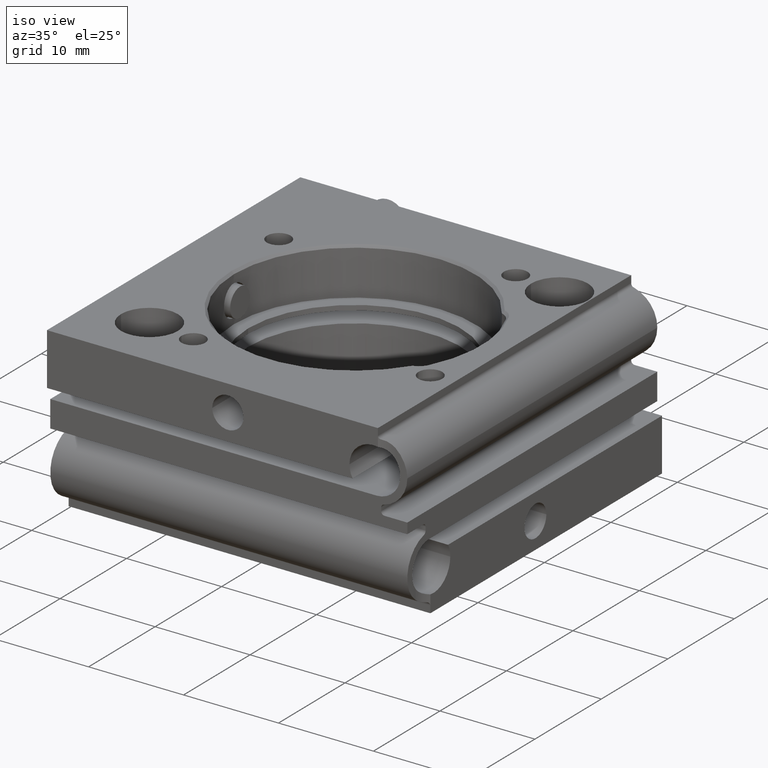
[diagram: clean part render]
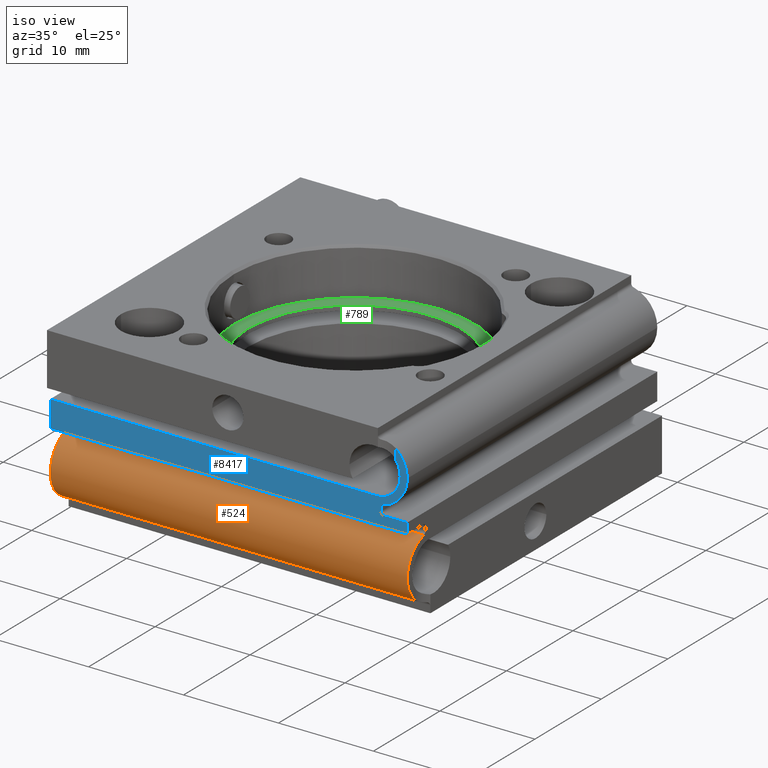
[diagram: same view with three faces highlighted in distinct colors, each labeled with its STEP entity id]
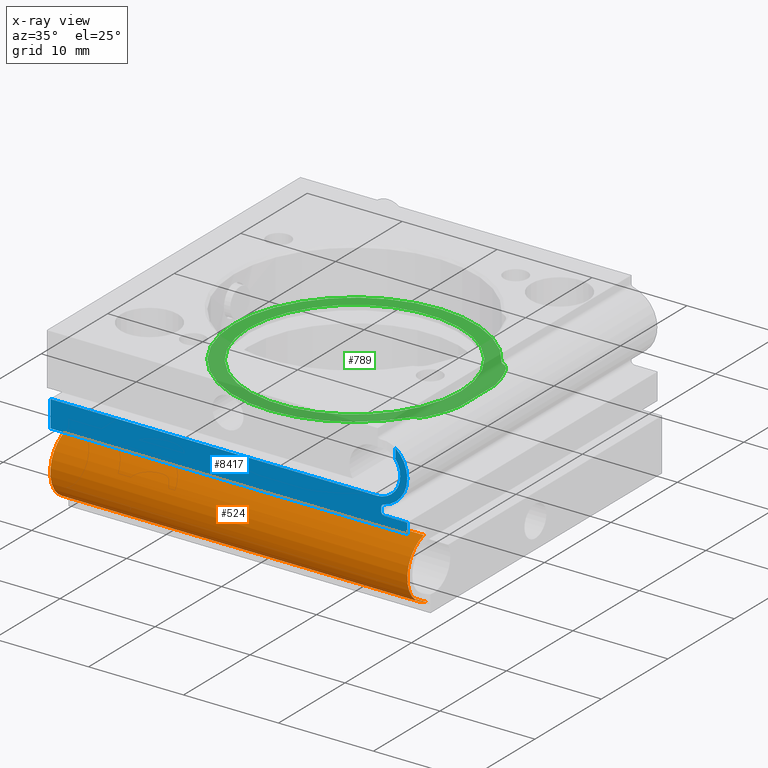
[diagram: x-ray of the same camera — body ghosted, the three highlighted faces saturated]
A machine part, iso view with three faces highlighted in distinct colors.
The next image is the same camera in x-ray (body ghosted, the three faces saturated) — at least one of them is partly hidden behind the body in this view.
Their STEP definitions:

[orange] entity #524 — the highlighted cylindrical surface (partial cylindrical patch) has radius 3.25 mm, axis along (1, 0, -0).
#366 = ORIENTED_EDGE ( 'NONE', *, *, #4322, .F. ) ;
#524 = ADVANCED_FACE ( 'NONE', ( #7244 ), #4232, .T. ) ;
#576 = CARTESIAN_POINT ( 'NONE',  ( -19.05000000000015703, -16.06736111111124643, -1.591890292413144392 ) ) ;
#1134 = ORIENTED_EDGE ( 'NONE', *, *, #10016, .T. ) ;
#1227 = EDGE_CURVE ( 'NONE', #9018, #3850, #4810, .T. ) ;
#1525 = ORIENTED_EDGE ( 'NONE', *, *, #6764, .T. ) ;
#2017 = DIRECTION ( 'NONE',  ( -1.000000000000000000, -4.496403249731883989E-15, -1.000802005371234018E-16 ) ) ;
#2047 = CARTESIAN_POINT ( 'NONE',  ( 18.57141869312910032, -16.90716026191357457, -7.584533274308154382 ) ) ;
#2576 = DIRECTION ( 'NONE',  ( 1.000000000000000000, 4.496403249731883989E-15, -2.403560570595272096E-31 ) ) ;
#2895 = B_SPLINE_CURVE_WITH_KNOTS ( 'NONE', 3,
 ( #5452, #9587, #6160, #2047, #10270, #6371 ),
 .UNSPECIFIED., .F., .F.,
 ( 4, 2, 4 ),
 ( 0.0000000000000000000, 0.0007118922461806793511, 0.001423784492361358702 ),
 .UNSPECIFIED. ) ;
#3115 = CARTESIAN_POINT ( 'NONE',  ( 18.54999999999984439, -16.06736111111096221, -1.591890292413144836 ) ) ;
#3162 = AXIS2_PLACEMENT_3D ( 'NONE', #9985, #2017, #5301 ) ;
#3553 = VECTOR ( 'NONE', #3909, 1000.000000000000000 ) ;
#3850 = VERTEX_POINT ( 'NONE', #4813 ) ;
#3909 = DIRECTION ( 'NONE',  ( -1.000000000000000000, -4.496403249731883989E-15, 2.403560570595272096E-31 ) ) ;
#3982 = VERTEX_POINT ( 'NONE', #5008 ) ;
#4232 = CYLINDRICAL_SURFACE ( 'NONE', #7175, 3.249999999999999556 ) ;
#4322 = EDGE_CURVE ( 'NONE', #9018, #8710, #5099, .T. ) ;
#4760 = DIRECTION ( 'NONE',  ( 1.000000000000000000, 4.496403249731883989E-15, -2.403560570595272096E-31 ) ) ;
#4810 = LINE ( 'NONE', #8838, #8151 ) ;
#4813 = CARTESIAN_POINT ( 'NONE',  ( 18.87500543228278360, -16.06736111111096221, -7.908109707586850057 ) ) ;
#5008 = CARTESIAN_POINT ( 'NONE',  ( 18.54999999999985860, -17.29999999999984794, -7.311737691489901714 ) ) ;
#5085 = CARTESIAN_POINT ( 'NONE',  ( -19.05000000000015703, -15.30000000000006288, -4.749999999999998224 ) ) ;
#5099 = CIRCLE ( 'NONE', #5272, 3.249999999999999556 ) ;
#5272 = AXIS2_PLACEMENT_3D ( 'NONE', #5085, #7524, #9119 ) ;
#5301 = DIRECTION ( 'NONE',  ( 0.0000000000000000000, 0.0000000000000000000, -1.000000000000000000 ) ) ;
#5452 = CARTESIAN_POINT ( 'NONE',  ( 18.87500543228278360, -16.06736111111096221, -7.908109707586850057 ) ) ;
#5477 = EDGE_LOOP ( 'NONE', ( #1134, #10669, #1525, #366, #9369 ) ) ;
#6160 = CARTESIAN_POINT ( 'NONE',  ( 18.67706603401712684, -16.48337723049468551, -7.785977819579886550 ) ) ;
#6228 = EDGE_CURVE ( 'NONE', #3982, #10124, #10359, .T. ) ;
#6371 = CARTESIAN_POINT ( 'NONE',  ( 18.54999999999985860, -17.29999999999984794, -7.311737691489901714 ) ) ;
#6764 = EDGE_CURVE ( 'NONE', #10124, #8710, #7990, .T. ) ;
#6812 = CARTESIAN_POINT ( 'NONE',  ( -19.05000000000015703, -15.30000000000006288, -4.749999999999998224 ) ) ;
#6843 = CARTESIAN_POINT ( 'NONE',  ( -19.05000000000015703, -16.06736111111124643, -1.591890292413144836 ) ) ;
#7175 = AXIS2_PLACEMENT_3D ( 'NONE', #6812, #2576, #9216 ) ;
#7244 = FACE_OUTER_BOUND ( 'NONE', #5477, .T. ) ;
#7524 = DIRECTION ( 'NONE',  ( -1.000000000000000000, -4.496403249731883989E-15, 2.403560570595272096E-31 ) ) ;
#7990 = LINE ( 'NONE', #576, #3553 ) ;
#8151 = VECTOR ( 'NONE', #4760, 1000.000000000000000 ) ;
#8710 = VERTEX_POINT ( 'NONE', #6843 ) ;
#8838 = CARTESIAN_POINT ( 'NONE',  ( -19.05000000000015703, -16.06736111111124643, -7.908109707586851833 ) ) ;
#9018 = VERTEX_POINT ( 'NONE', #10556 ) ;
#9119 = DIRECTION ( 'NONE',  ( 4.270088556250602685E-15, 1.000000000000000000, 0.0000000000000000000 ) ) ;
#9216 = DIRECTION ( 'NONE',  ( 4.270088556250602685E-15, 1.000000000000000000, 0.0000000000000000000 ) ) ;
#9369 = ORIENTED_EDGE ( 'NONE', *, *, #1227, .T. ) ;
#9587 = CARTESIAN_POINT ( 'NONE',  ( 18.75870090299682502, -16.27258075952387273, -7.858245202547762709 ) ) ;
#9985 = CARTESIAN_POINT ( 'NONE',  ( 18.54999999999984439, -15.29999999999992433, -4.749999999999998224 ) ) ;
#10016 = EDGE_CURVE ( 'NONE', #3850, #3982, #2895, .T. ) ;
#10124 = VERTEX_POINT ( 'NONE', #3115 ) ;
#10270 = CARTESIAN_POINT ( 'NONE',  ( 18.54999999999985860, -17.11023702222711407, -7.459889454570972411 ) ) ;
#10359 = CIRCLE ( 'NONE', #3162, 3.250000000000000444 ) ;
#10556 = CARTESIAN_POINT ( 'NONE',  ( -19.05000000000015703, -16.06736111111124643, -7.908109707586851833 ) ) ;
#10669 = ORIENTED_EDGE ( 'NONE', *, *, #6228, .T. ) ;

[blue] entity #8417 — the highlighted planar face has unit normal (0, 1, 0).
#2 = CIRCLE ( 'NONE', #7620, 2.500000000000000444 ) ;
#71 = VECTOR ( 'NONE', #5574, 1000.000000000000000 ) ;
#357 = EDGE_CURVE ( 'NONE', #8084, #2644, #3029, .T. ) ;
#425 = VERTEX_POINT ( 'NONE', #1517 ) ;
#533 = CARTESIAN_POINT ( 'NONE',  ( 15.29999999999992966, -18.54999999999985505, 2.249999999999999556 ) ) ;
#588 = CARTESIAN_POINT ( 'NONE',  ( 15.79999999999985505, -18.54999999999985505, 1.538691855333712777 ) ) ;
#659 = EDGE_CURVE ( 'NONE', #9827, #9586, #7364, .T. ) ;
#731 = AXIS2_PLACEMENT_3D ( 'NONE', #4843, #3941, #5703 ) ;
#741 = AXIS2_PLACEMENT_3D ( 'NONE', #4755, #2451, #7231 ) ;
#800 = DIRECTION ( 'NONE',  ( 0.0000000000000000000, 0.0000000000000000000, -1.000000000000000000 ) ) ;
#936 = EDGE_CURVE ( 'NONE', #9715, #7963, #3154, .T. ) ;
#974 = LINE ( 'NONE', #7457, #6486 ) ;
#984 = ORIENTED_EDGE ( 'NONE', *, *, #3957, .F. ) ;
#1020 = LINE ( 'NONE', #8513, #9502 ) ;
#1026 = CARTESIAN_POINT ( 'NONE',  ( 17.29999999999986215, -18.54999999999985150, 9.000000000000001776 ) ) ;
#1367 = CARTESIAN_POINT ( 'NONE',  ( 17.29999999999986215, -18.54999999999985150, 6.249999999999998224 ) ) ;
#1470 = LINE ( 'NONE', #5731, #6615 ) ;
#1517 = CARTESIAN_POINT ( 'NONE',  ( 17.79999999999992966, -18.54999999999986571, 4.749999999999999112 ) ) ;
#1527 = ORIENTED_EDGE ( 'NONE', *, *, #3452, .T. ) ;
#1569 = DIRECTION ( 'NONE',  ( -1.000802005371246714E-16, -7.792911615157452995E-17, 1.000000000000000000 ) ) ;
#1601 = ORIENTED_EDGE ( 'NONE', *, *, #357, .F. ) ;
#1639 = CARTESIAN_POINT ( 'NONE',  ( 15.29999999999992966, -18.54999999999985505, 4.750000000000000000 ) ) ;
#1832 = LINE ( 'NONE', #1026, #8898 ) ;
#1872 = VERTEX_POINT ( 'NONE', #2529 ) ;
#1925 = DIRECTION ( 'NONE',  ( -4.718447854656915297E-15, -1.000000000000000000, -7.792911615157350690E-17 ) ) ;
#2167 = VECTOR ( 'NONE', #8705, 1000.000000000000000 ) ;
#2349 = CARTESIAN_POINT ( 'NONE',  ( 15.79999999999985505, -18.54999999999985505, 0.8999999999999990230 ) ) ;
#2451 = DIRECTION ( 'NONE',  ( 4.718447854656915297E-15, 1.000000000000000000, 7.792911615157350690E-17 ) ) ;
#2529 = CARTESIAN_POINT ( 'NONE',  ( 18.54999999999984794, -18.54999999999985505, 0.5499999999999993783 ) ) ;
#2632 = CIRCLE ( 'NONE', #741, 3.249999999999999556 ) ;
#2644 = VERTEX_POINT ( 'NONE', #2349 ) ;
#2923 = EDGE_LOOP ( 'NONE', ( #4465, #1527, #6014, #6450, #1601, #984, #8924, #5526, #3432, #10297, #7961, #10512, #9637 ) ) ;
#2937 = EDGE_CURVE ( 'NONE', #7963, #425, #2, .T. ) ;
#3029 = LINE ( 'NONE', #588, #71 ) ;
#3154 = LINE ( 'NONE', #8113, #2167 ) ;
#3334 = AXIS2_PLACEMENT_3D ( 'NONE', #9943, #6798, #3821 ) ;
#3432 = ORIENTED_EDGE ( 'NONE', *, *, #4789, .T. ) ;
#3452 = EDGE_CURVE ( 'NONE', #10062, #1872, #1470, .T. ) ;
#3506 = PLANE ( 'NONE',  #3334 ) ;
#3609 = EDGE_CURVE ( 'NONE', #5985, #1872, #974, .T. ) ;
#3821 = DIRECTION ( 'NONE',  ( 6.388754070904234775E-31, 7.792911615157351922E-17, -1.000000000000000000 ) ) ;
#3919 = AXIS2_PLACEMENT_3D ( 'NONE', #6157, #5505, #6314 ) ;
#3941 = DIRECTION ( 'NONE',  ( -4.718447854656915297E-15, -1.000000000000000000, -7.792911615157350690E-17 ) ) ;
#3957 = EDGE_CURVE ( 'NONE', #9825, #8084, #10413, .T. ) ;
#4094 = EDGE_CURVE ( 'NONE', #2644, #5985, #7360, .T. ) ;
#4116 = DIRECTION ( 'NONE',  ( -4.718447854656915297E-15, -1.000000000000000000, -7.792911615157350690E-17 ) ) ;
#4465 = ORIENTED_EDGE ( 'NONE', *, *, #8058, .T. ) ;
#4484 = VERTEX_POINT ( 'NONE', #1367 ) ;
#4499 = LINE ( 'NONE', #6055, #8556 ) ;
#4554 = CARTESIAN_POINT ( 'NONE',  ( 18.54999999999984794, -18.54999999999985505, -0.5500000000000009326 ) ) ;
#4607 = AXIS2_PLACEMENT_3D ( 'NONE', #10412, #1925, #10350 ) ;
#4655 = VERTEX_POINT ( 'NONE', #9699 ) ;
#4755 = CARTESIAN_POINT ( 'NONE',  ( 15.29999999999992788, -18.54999999999985505, 4.750000000000000000 ) ) ;
#4789 = EDGE_CURVE ( 'NONE', #9827, #4484, #1832, .T. ) ;
#4826 = EDGE_CURVE ( 'NONE', #9715, #4655, #4499, .T. ) ;
#4843 = CARTESIAN_POINT ( 'NONE',  ( 15.29999999999992966, -18.54999999999985505, 4.750000000000000000 ) ) ;
#5061 = CARTESIAN_POINT ( 'NONE',  ( 16.14999999999985647, -18.54999999999985505, 1.251786170057640035 ) ) ;
#5159 = DIRECTION ( 'NONE',  ( 1.000000000000000000, 4.496403249731883989E-15, -2.403560570595272096E-31 ) ) ;
#5335 = CARTESIAN_POINT ( 'NONE',  ( 16.14999999999985647, -18.54999999999985505, 0.5499999999999990452 ) ) ;
#5505 = DIRECTION ( 'NONE',  ( 4.718447854656915297E-15, 1.000000000000000000, 7.792911615157350690E-17 ) ) ;
#5518 = CARTESIAN_POINT ( 'NONE',  ( -19.05000000000015703, -18.55000000000013571, 2.249999999999996003 ) ) ;
#5526 = ORIENTED_EDGE ( 'NONE', *, *, #659, .F. ) ;
#5574 = DIRECTION ( 'NONE',  ( 6.297619439223282751E-31, 7.792911615157351922E-17, -1.000000000000000000 ) ) ;
#5691 = DIRECTION ( 'NONE',  ( 0.0000000000000000000, 0.0000000000000000000, -1.000000000000000000 ) ) ;
#5703 = DIRECTION ( 'NONE',  ( 6.938893903907227392E-16, 0.0000000000000000000, -1.000000000000000000 ) ) ;
#5731 = CARTESIAN_POINT ( 'NONE',  ( 18.54999999999984439, -18.54999999999985505, 41.60328069864851130 ) ) ;
#5801 = AXIS2_PLACEMENT_3D ( 'NONE', #5061, #4116, #800 ) ;
#5985 = VERTEX_POINT ( 'NONE', #5335 ) ;
#6014 = ORIENTED_EDGE ( 'NONE', *, *, #3609, .F. ) ;
#6055 = CARTESIAN_POINT ( 'NONE',  ( -19.05000000000015703, -18.55000000000013927, 41.60328069864851130 ) ) ;
#6115 = EDGE_CURVE ( 'NONE', #9586, #9825, #2632, .T. ) ;
#6157 = CARTESIAN_POINT ( 'NONE',  ( 15.29999999999992788, -18.54999999999985505, 4.750000000000000000 ) ) ;
#6314 = DIRECTION ( 'NONE',  ( 0.0000000000000000000, 0.0000000000000000000, -1.000000000000000000 ) ) ;
#6450 = ORIENTED_EDGE ( 'NONE', *, *, #4094, .F. ) ;
#6486 = VECTOR ( 'NONE', #9914, 1000.000000000000000 ) ;
#6615 = VECTOR ( 'NONE', #1569, 1000.000000000000000 ) ;
#6696 = FACE_OUTER_BOUND ( 'NONE', #2923, .T. ) ;
#6798 = DIRECTION ( 'NONE',  ( 4.718447854656915297E-15, 1.000000000000000000, 7.792911615157351922E-17 ) ) ;
#6978 = DIRECTION ( 'NONE',  ( 6.388754070904234775E-31, 7.792911615157351922E-17, -1.000000000000000000 ) ) ;
#7231 = DIRECTION ( 'NONE',  ( 0.0000000000000000000, 0.0000000000000000000, -1.000000000000000000 ) ) ;
#7360 = CIRCLE ( 'NONE', #4607, 0.3499999999999999223 ) ;
#7364 = CIRCLE ( 'NONE', #3919, 3.249999999999999556 ) ;
#7457 = CARTESIAN_POINT ( 'NONE',  ( 15.79999999999985150, -18.54999999999985505, 0.5499999999999990452 ) ) ;
#7508 = CARTESIAN_POINT ( 'NONE',  ( 16.06736111111096221, -18.54999999999985505, 1.591890292413146391 ) ) ;
#7620 = AXIS2_PLACEMENT_3D ( 'NONE', #1639, #9022, #5691 ) ;
#7798 = CIRCLE ( 'NONE', #731, 2.500000000000000444 ) ;
#7961 = ORIENTED_EDGE ( 'NONE', *, *, #2937, .F. ) ;
#7963 = VERTEX_POINT ( 'NONE', #533 ) ;
#8058 = EDGE_CURVE ( 'NONE', #4655, #10062, #1020, .T. ) ;
#8084 = VERTEX_POINT ( 'NONE', #8359 ) ;
#8113 = CARTESIAN_POINT ( 'NONE',  ( 15.29999999999992966, -18.54999999999985505, 2.249999999999999556 ) ) ;
#8359 = CARTESIAN_POINT ( 'NONE',  ( 15.79999999999985505, -18.54999999999985505, 1.251786170057640035 ) ) ;
#8417 = ADVANCED_FACE ( 'NONE', ( #6696 ), #3506, .F. ) ;
#8435 = CARTESIAN_POINT ( 'NONE',  ( 18.54999999999992610, -18.54999999999986926, 4.749999999999999112 ) ) ;
#8508 = EDGE_CURVE ( 'NONE', #425, #4484, #7798, .T. ) ;
#8513 = CARTESIAN_POINT ( 'NONE',  ( 19.04999999999985150, -18.54999999999985150, -0.5499999999999991562 ) ) ;
#8556 = VECTOR ( 'NONE', #6978, 1000.000000000000000 ) ;
#8705 = DIRECTION ( 'NONE',  ( 1.000000000000000000, 4.496403249731883989E-15, -2.403560570595272096E-31 ) ) ;
#8898 = VECTOR ( 'NONE', #10012, 1000.000000000000000 ) ;
#8924 = ORIENTED_EDGE ( 'NONE', *, *, #6115, .F. ) ;
#9022 = DIRECTION ( 'NONE',  ( -4.718447854656915297E-15, -1.000000000000000000, -7.792911615157350690E-17 ) ) ;
#9502 = VECTOR ( 'NONE', #5159, 1000.000000000000000 ) ;
#9586 = VERTEX_POINT ( 'NONE', #8435 ) ;
#9637 = ORIENTED_EDGE ( 'NONE', *, *, #4826, .T. ) ;
#9699 = CARTESIAN_POINT ( 'NONE',  ( -19.05000000000015703, -18.55000000000013571, -0.5499999999999991562 ) ) ;
#9715 = VERTEX_POINT ( 'NONE', #5518 ) ;
#9796 = CARTESIAN_POINT ( 'NONE',  ( 17.29999999999986215, -18.54999999999985150, 7.311737691489895496 ) ) ;
#9825 = VERTEX_POINT ( 'NONE', #7508 ) ;
#9827 = VERTEX_POINT ( 'NONE', #9796 ) ;
#9914 = DIRECTION ( 'NONE',  ( 1.000000000000000000, 4.496403249731883989E-15, 1.000802005371234018E-16 ) ) ;
#9943 = CARTESIAN_POINT ( 'NONE',  ( 19.04999999999985150, -18.54999999999985505, 41.60328069864851130 ) ) ;
#10012 = DIRECTION ( 'NONE',  ( 9.244463733059294530E-33, -5.551115123125756201E-17, -1.000000000000000000 ) ) ;
#10062 = VERTEX_POINT ( 'NONE', #4554 ) ;
#10297 = ORIENTED_EDGE ( 'NONE', *, *, #8508, .F. ) ;
#10350 = DIRECTION ( 'NONE',  ( 0.0000000000000000000, 0.0000000000000000000, -1.000000000000000000 ) ) ;
#10412 = CARTESIAN_POINT ( 'NONE',  ( 16.14999999999985647, -18.54999999999985505, 0.8999999999999990230 ) ) ;
#10413 = CIRCLE ( 'NONE', #5801, 0.3500000000000000333 ) ;
#10512 = ORIENTED_EDGE ( 'NONE', *, *, #936, .F. ) ;

[green] entity #789 — the highlighted planar face has unit normal (-0, 0, 1).
#35 = DIRECTION ( 'NONE',  ( 4.513559255132095605E-15, 1.000000000000000000, -5.551115123125782702E-17 ) ) ;
#280 = CARTESIAN_POINT ( 'NONE',  ( -3.697785493223491196E-32, 2.220446049250311602E-16, 3.999999999999998224 ) ) ;
#293 = ORIENTED_EDGE ( 'NONE', *, *, #8938, .F. ) ;
#604 = CARTESIAN_POINT ( 'NONE',  ( 10.68890632383393680, 6.858373101567521779, 3.999999999999999112 ) ) ;
#626 = CARTESIAN_POINT ( 'NONE',  ( 10.94807042111027329, -6.655242599215166699, 3.999999999999999112 ) ) ;
#661 = EDGE_LOOP ( 'NONE', ( #7557, #9982, #4366, #4392, #4347, #7517, #2330, #2634, #1748 ) ) ;
#729 = CIRCLE ( 'NONE', #2119, 0.5000000000000004441 ) ;
#789 = ADVANCED_FACE ( 'NONE', ( #3344, #4997 ), #4156, .T. ) ;
#836 = DIRECTION ( 'NONE',  ( -1.000000000000000000, -4.496403249731884778E-15, 0.0000000000000000000 ) ) ;
#856 = CARTESIAN_POINT ( 'NONE',  ( 11.10972940744929360, -7.128387790605547281, 3.999999999999999112 ) ) ;
#945 = CIRCLE ( 'NONE', #6829, 13.19999999999999929 ) ;
#963 = AXIS2_PLACEMENT_3D ( 'NONE', #6635, #5767, #1701 ) ;
#1047 = DIRECTION ( 'NONE',  ( -1.000000000000000000, -4.496403249731883200E-15, 0.0000000000000000000 ) ) ;
#1126 = EDGE_CURVE ( 'NONE', #4074, #7173, #729, .T. ) ;
#1158 = ORIENTED_EDGE ( 'NONE', *, *, #4762, .F. ) ;
#1566 = DIRECTION ( 'NONE',  ( -1.000000000000000000, -5.204170427930416550E-15, 0.0000000000000000000 ) ) ;
#1605 = CARTESIAN_POINT ( 'NONE',  ( 11.80451570082312251, -5.907064335947105782, 3.999999999999999112 ) ) ;
#1701 = DIRECTION ( 'NONE',  ( -1.000000000000000000, -4.496403249731883989E-15, 2.403560570595272096E-31 ) ) ;
#1748 = ORIENTED_EDGE ( 'NONE', *, *, #2702, .F. ) ;
#2119 = AXIS2_PLACEMENT_3D ( 'NONE', #856, #3122, #1566 ) ;
#2122 = CARTESIAN_POINT ( 'NONE',  ( 10.94807042111042250, 6.655242599215230648, 4.000000000000000000 ) ) ;
#2299 = VERTEX_POINT ( 'NONE', #9202 ) ;
#2330 = ORIENTED_EDGE ( 'NONE', *, *, #5861, .F. ) ;
#2355 = CIRCLE ( 'NONE', #2865, 11.19999999999999751 ) ;
#2394 = EDGE_CURVE ( 'NONE', #2934, #2299, #2602, .T. ) ;
#2420 = EDGE_CURVE ( 'NONE', #10477, #7731, #5186, .T. ) ;
#2424 = EDGE_LOOP ( 'NONE', ( #1158, #293 ) ) ;
#2571 = EDGE_CURVE ( 'NONE', #2299, #4074, #9994, .T. ) ;
#2602 = CIRCLE ( 'NONE', #9657, 12.69999999999999929 ) ;
#2634 = ORIENTED_EDGE ( 'NONE', *, *, #4713, .T. ) ;
#2695 = DIRECTION ( 'NONE',  ( -9.244463733059294530E-33, 5.551115123125756201E-17, 1.000000000000000000 ) ) ;
#2702 = EDGE_CURVE ( 'NONE', #10477, #6394, #7966, .T. ) ;
#2865 = AXIS2_PLACEMENT_3D ( 'NONE', #8418, #2695, #5023 ) ;
#2934 = VERTEX_POINT ( 'NONE', #604 ) ;
#3122 = DIRECTION ( 'NONE',  ( 9.244463733059294530E-33, -5.551115123125756201E-17, -1.000000000000000000 ) ) ;
#3226 = DIRECTION ( 'NONE',  ( 9.244463733059294530E-33, -5.551115123125756201E-17, -1.000000000000000000 ) ) ;
#3262 = VERTEX_POINT ( 'NONE', #6062 ) ;
#3344 = FACE_BOUND ( 'NONE', #2424, .T. ) ;
#3622 = DIRECTION ( 'NONE',  ( -1.000000000000000000, -4.496403249731884778E-15, 0.0000000000000000000 ) ) ;
#4074 = VERTEX_POINT ( 'NONE', #4685 ) ;
#4153 = DIRECTION ( 'NONE',  ( -1.000000000000000000, -1.908195823574486226E-14, 0.0000000000000000000 ) ) ;
#4156 = PLANE ( 'NONE',  #963 ) ;
#4199 = DIRECTION ( 'NONE',  ( -9.244463733059294530E-33, 5.551115123125756201E-17, 1.000000000000000000 ) ) ;
#4254 = VERTEX_POINT ( 'NONE', #10462 ) ;
#4273 = DIRECTION ( 'NONE',  ( -9.244463733059294530E-33, 5.551115123125756201E-17, 1.000000000000000000 ) ) ;
#4329 = EDGE_CURVE ( 'NONE', #7173, #8271, #6852, .T. ) ;
#4347 = ORIENTED_EDGE ( 'NONE', *, *, #1126, .T. ) ;
#4366 = ORIENTED_EDGE ( 'NONE', *, *, #2394, .T. ) ;
#4392 = ORIENTED_EDGE ( 'NONE', *, *, #2571, .T. ) ;
#4483 = DIRECTION ( 'NONE',  ( -9.244463733059294530E-33, 5.551115123125756201E-17, 1.000000000000000000 ) ) ;
#4685 = CARTESIAN_POINT ( 'NONE',  ( 10.68890632383378758, -6.858373101567456942, 3.999999999999999112 ) ) ;
#4713 = EDGE_CURVE ( 'NONE', #3262, #6394, #6715, .T. ) ;
#4762 = EDGE_CURVE ( 'NONE', #4988, #4254, #2355, .T. ) ;
#4792 = VECTOR ( 'NONE', #35, 1000.000000000000000 ) ;
#4845 = CARTESIAN_POINT ( 'NONE',  ( -3.697785493223490648E-32, 2.220446049250312095E-16, 3.999999999999999112 ) ) ;
#4900 = DIRECTION ( 'NONE',  ( -9.244463733059294530E-33, 5.551115123125756201E-17, 1.000000000000000000 ) ) ;
#4988 = VERTEX_POINT ( 'NONE', #8997 ) ;
#4997 = FACE_OUTER_BOUND ( 'NONE', #661, .T. ) ;
#5023 = DIRECTION ( 'NONE',  ( -1.000000000000000000, -4.496403249731884778E-15, 0.0000000000000000000 ) ) ;
#5058 = CARTESIAN_POINT ( 'NONE',  ( 10.46309346209336333, 5.235807025044087126, 4.000000000000000000 ) ) ;
#5186 = CIRCLE ( 'NONE', #8121, 1.499999999999999556 ) ;
#5649 = DIRECTION ( 'NONE',  ( 9.244463733059294530E-33, -5.551115123125756201E-17, -1.000000000000000000 ) ) ;
#5744 = DIRECTION ( 'NONE',  ( -1.000000000000000000, -4.496403249731884778E-15, 0.0000000000000000000 ) ) ;
#5767 = DIRECTION ( 'NONE',  ( -9.244463733057374587E-33, 5.551115123125756201E-17, 1.000000000000000000 ) ) ;
#5861 = EDGE_CURVE ( 'NONE', #3262, #8271, #945, .T. ) ;
#5976 = DIRECTION ( 'NONE',  ( 9.244463733059294530E-33, -5.551115123125756201E-17, -1.000000000000000000 ) ) ;
#6062 = CARTESIAN_POINT ( 'NONE',  ( 12.91515199645763623, -2.727425325906469578, 3.999999999999998224 ) ) ;
#6394 = VERTEX_POINT ( 'NONE', #7207 ) ;
#6395 = DIRECTION ( 'NONE',  ( -9.244463733059294530E-33, 5.551115123125756201E-17, 1.000000000000000000 ) ) ;
#6401 = CARTESIAN_POINT ( 'NONE',  ( -3.697785493223491196E-32, 2.220446049250311602E-16, 3.999999999999998224 ) ) ;
#6416 = AXIS2_PLACEMENT_3D ( 'NONE', #4845, #4900, #836 ) ;
#6590 = AXIS2_PLACEMENT_3D ( 'NONE', #7417, #6395, #5744 ) ;
#6635 = CARTESIAN_POINT ( 'NONE',  ( -3.697785493223490648E-32, 2.220446049250312095E-16, 3.999999999999999112 ) ) ;
#6715 = LINE ( 'NONE', #6760, #4792 ) ;
#6760 = CARTESIAN_POINT ( 'NONE',  ( 12.91515199645756518, -19.04999999999987281, 4.000000000000000000 ) ) ;
#6829 = AXIS2_PLACEMENT_3D ( 'NONE', #6401, #5649, #9659 ) ;
#6852 = CIRCLE ( 'NONE', #10586, 1.499999999999999556 ) ;
#6859 = CARTESIAN_POINT ( 'NONE',  ( -3.697785493223490648E-32, 2.220446049250312095E-16, 3.999999999999999112 ) ) ;
#7173 = VERTEX_POINT ( 'NONE', #626 ) ;
#7207 = CARTESIAN_POINT ( 'NONE',  ( 12.91515199645763623, 2.727425325906580600, 3.999999999999998224 ) ) ;
#7257 = CIRCLE ( 'NONE', #10309, 0.5000000000000004441 ) ;
#7417 = CARTESIAN_POINT ( 'NONE',  ( -3.697785493223490648E-32, 2.220446049250312095E-16, 3.999999999999999112 ) ) ;
#7517 = ORIENTED_EDGE ( 'NONE', *, *, #4329, .T. ) ;
#7546 = DIRECTION ( 'NONE',  ( -1.000000000000000000, -4.625929269271486900E-15, 0.0000000000000000000 ) ) ;
#7557 = ORIENTED_EDGE ( 'NONE', *, *, #2420, .T. ) ;
#7621 = CARTESIAN_POINT ( 'NONE',  ( 10.46309346209321589, -5.235807025044022289, 3.999999999999999112 ) ) ;
#7672 = DIRECTION ( 'NONE',  ( -1.000000000000000000, -4.625929269271486900E-15, 0.0000000000000000000 ) ) ;
#7731 = VERTEX_POINT ( 'NONE', #2122 ) ;
#7966 = CIRCLE ( 'NONE', #8642, 13.19999999999999929 ) ;
#8121 = AXIS2_PLACEMENT_3D ( 'NONE', #5058, #4273, #7546 ) ;
#8271 = VERTEX_POINT ( 'NONE', #1605 ) ;
#8418 = CARTESIAN_POINT ( 'NONE',  ( -3.697785493223490648E-32, 2.220446049250312095E-16, 3.999999999999999112 ) ) ;
#8642 = AXIS2_PLACEMENT_3D ( 'NONE', #280, #5976, #1047 ) ;
#8938 = EDGE_CURVE ( 'NONE', #4254, #4988, #10327, .T. ) ;
#8978 = CARTESIAN_POINT ( 'NONE',  ( 11.10972940744944459, 7.128387790605612118, 4.000000000000000000 ) ) ;
#8997 = CARTESIAN_POINT ( 'NONE',  ( -11.19999999999999751, -5.013767179207206558E-14, 3.999999999999999112 ) ) ;
#9039 = CARTESIAN_POINT ( 'NONE',  ( 11.80451570082327173, 5.907064335947170619, 4.000000000000000000 ) ) ;
#9202 = CARTESIAN_POINT ( 'NONE',  ( -12.69999999999999929, -5.675043768249565422E-14, 3.999999999999999112 ) ) ;
#9657 = AXIS2_PLACEMENT_3D ( 'NONE', #6859, #4483, #3622 ) ;
#9659 = DIRECTION ( 'NONE',  ( -1.000000000000000000, -4.496403249731883200E-15, 0.0000000000000000000 ) ) ;
#9982 = ORIENTED_EDGE ( 'NONE', *, *, #10472, .T. ) ;
#9994 = CIRCLE ( 'NONE', #6416, 12.69999999999999929 ) ;
#10309 = AXIS2_PLACEMENT_3D ( 'NONE', #8978, #3226, #4153 ) ;
#10327 = CIRCLE ( 'NONE', #6590, 11.19999999999999751 ) ;
#10462 = CARTESIAN_POINT ( 'NONE',  ( 11.19999999999999751, 4.919627879906927251E-14, 3.999999999999999112 ) ) ;
#10472 = EDGE_CURVE ( 'NONE', #7731, #2934, #7257, .T. ) ;
#10477 = VERTEX_POINT ( 'NONE', #9039 ) ;
#10586 = AXIS2_PLACEMENT_3D ( 'NONE', #7621, #4199, #7672 ) ;